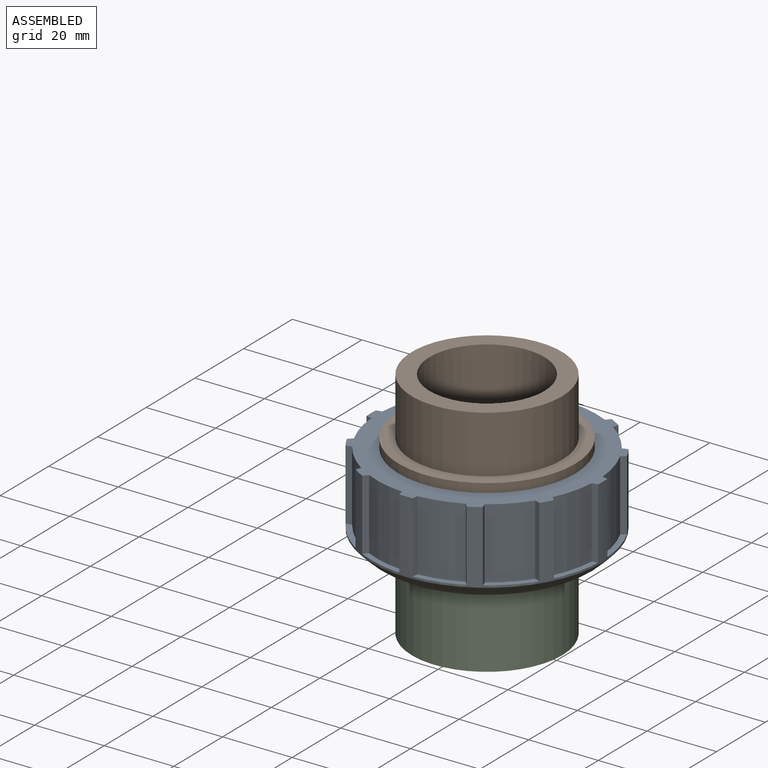
[diagram: assembled view]
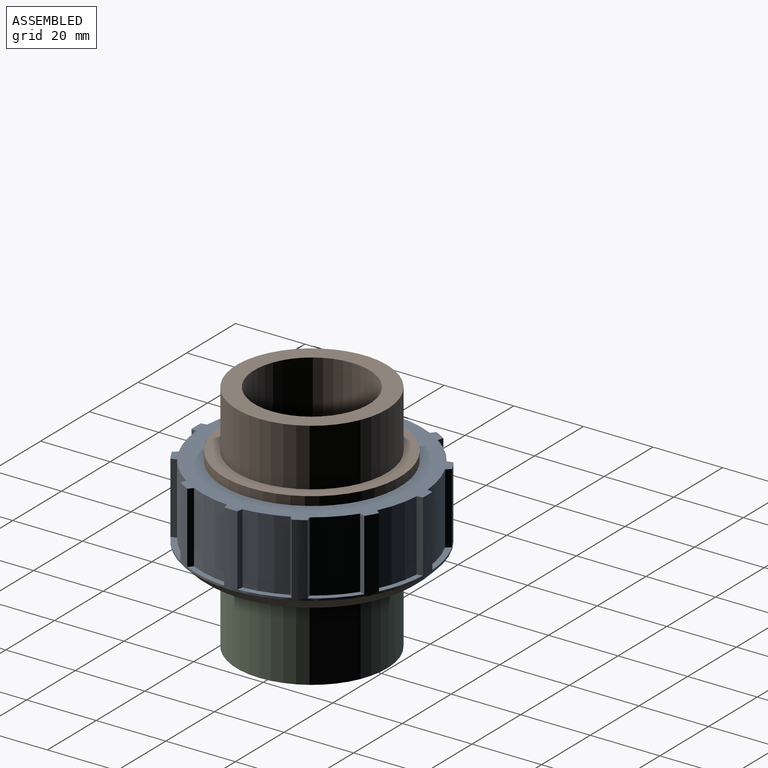
[diagram: assembled view, second angle]
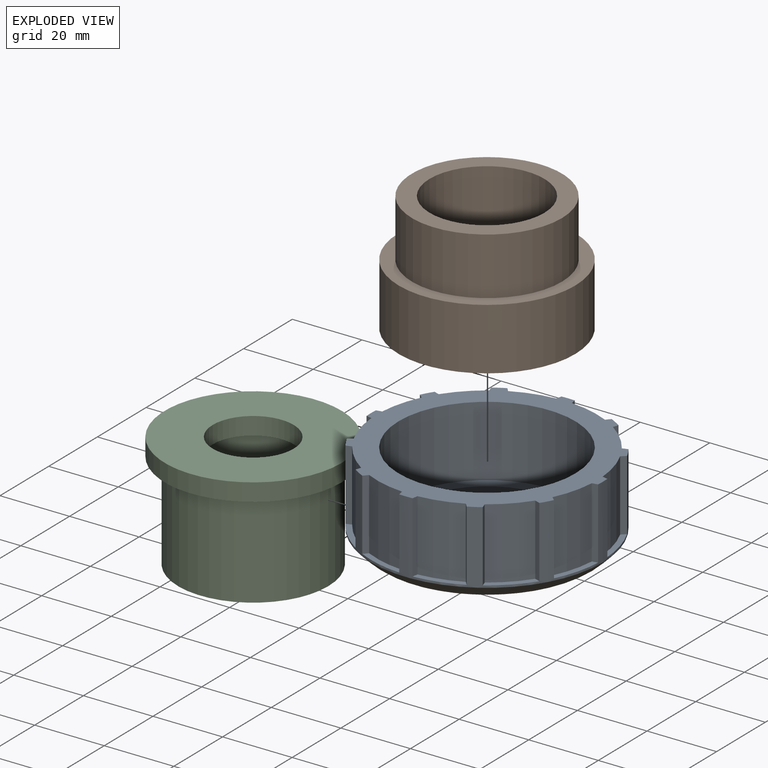
[diagram: exploded view]
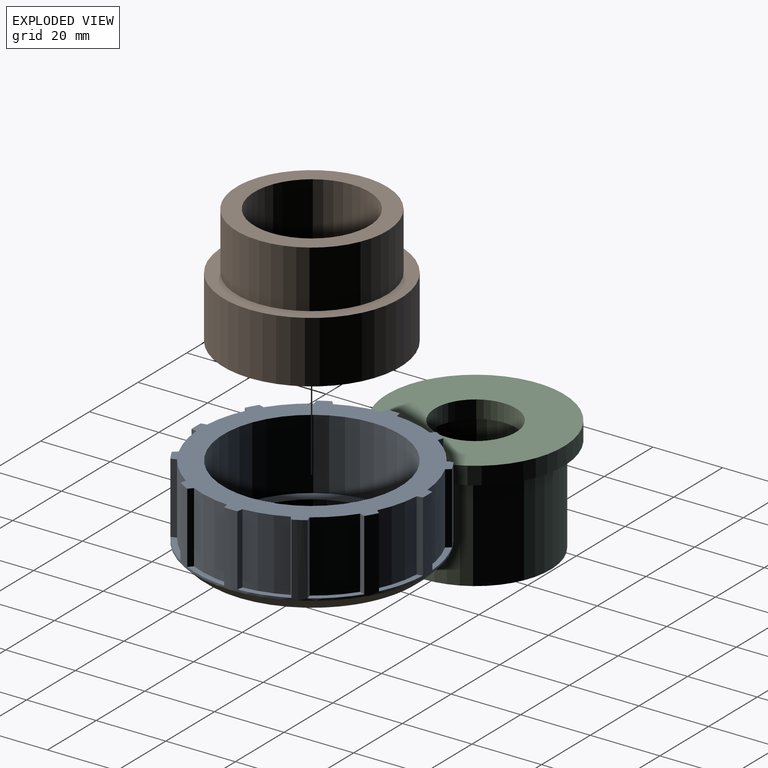
[diagram: exploded view, second angle]
ASSEMBLY  parts=3 mates=2
PART A: 56 faces, bbox 70.6x70.6x25.4 mm
  f0: cylinder r=31.75mm len=20.32mm, axis (0,0,-1), area 247.4mm2, adj f1,f37,f38,f53
  f1: plane 20.32x1.61mm, normal (0.19,-0.98,0), area 33.4mm2, adj f0,f20,f38,f53
  f2: plane 20.32x1.61mm, normal (0.19,0.98,0), area 33.4mm2, adj f3,f20,f38,f42
  f3: cylinder r=31.75mm len=20.32mm, axis (0,0,-1), area 247.4mm2, adj f2,f4,f38,f42
  f4: plane 20.32x1.24mm, normal (0.66,-0.75,0), area 33.4mm2, adj f3,f20,f38,f42
  f5: plane 20.32x1.55mm, normal (-0.32,0.95,0), area 33.4mm2, adj f6,f20,f38,f43
  f6: cylinder r=31.75mm len=20.32mm, axis (0,0,-1), area 247.4mm2, adj f5,f7,f38,f43
  f7: plane 20.32x1.55mm, normal (0.95,-0.32,0), area 33.4mm2, adj f6,f20,f38,f43
  f8: plane 20.32x1.24mm, normal (-0.75,0.66,0), area 33.4mm2, adj f9,f20,f38,f44
  f9: cylinder r=31.75mm len=20.32mm, axis (0,0,-1), area 247.4mm2, adj f8,f10,f38,f44
  f10: plane 20.32x1.61mm, normal (0.98,0.19,0), area 33.4mm2, adj f9,f20,f38,f44
  f11: plane 20.32x1.61mm, normal (-0.98,0.19,0), area 33.4mm2, adj f12,f20,f38,f45
  f12: cylinder r=31.75mm len=20.32mm, axis (0,0,-1), area 247.4mm2, adj f11,f13,f38,f45
  f13: plane 20.32x1.24mm, normal (0.75,0.66,0), area 33.4mm2, adj f12,f20,f38,f45
  f14: plane 20.32x1.55mm, normal (-0.95,-0.32,0), area 33.4mm2, adj f15,f20,f38,f46
  f15: cylinder r=31.75mm len=20.32mm, axis (0,0,-1), area 247.4mm2, adj f14,f16,f38,f46
  f16: plane 20.32x1.55mm, normal (0.32,0.95,0), area 33.4mm2, adj f15,f20,f38,f46
  f17: plane 20.32x1.24mm, normal (-0.66,-0.75,0), area 33.4mm2, adj f18,f20,f38,f47
  f18: cylinder r=31.75mm len=20.32mm, axis (0,0,-1), area 247.4mm2, adj f17,f19,f38,f47
  f19: plane 20.32x1.61mm, normal (-0.19,0.98,0), area 33.4mm2, adj f18,f20,f38,f47
  f20: cylinder r=33.34mm len=66.68mm, axis (0,0,-1), area 1062.5mm2, adj f1,f2,f4,f5,f7,f8,f10,f11
  f21: plane 20.32x1.61mm, normal (-0.19,-0.98,0), area 33.4mm2, adj f20,f22,f38,f48
  f22: cylinder r=31.75mm len=20.32mm, axis (0,0,-1), area 247.4mm2, adj f21,f23,f38,f48
  f23: plane 20.32x1.24mm, normal (-0.66,0.75,0), area 33.4mm2, adj f20,f22,f38,f48
  f24: plane 20.32x1.55mm, normal (0.32,-0.95,0), area 33.4mm2, adj f20,f25,f38,f49
  f25: cylinder r=31.75mm len=20.32mm, axis (0,0,-1), area 247.4mm2, adj f24,f26,f38,f49
  f26: plane 20.32x1.55mm, normal (-0.95,0.32,0), area 33.4mm2, adj f20,f25,f38,f49
  f27: plane 20.32x1.24mm, normal (0.75,-0.66,0), area 33.4mm2, adj f20,f28,f38,f50
  f28: cylinder r=31.75mm len=20.32mm, axis (0,0,-1), area 247.4mm2, adj f27,f29,f38,f50
  f29: plane 20.32x1.61mm, normal (-0.98,-0.19,0), area 33.4mm2, adj f20,f28,f38,f50
  f30: plane 20.32x1.61mm, normal (0.98,-0.19,0), area 33.4mm2, adj f20,f31,f38,f51
  f31: cylinder r=31.75mm len=20.32mm, axis (0,0,-1), area 247.4mm2, adj f30,f32,f38,f51
  f32: plane 20.32x1.24mm, normal (-0.75,-0.66,0), area 33.4mm2, adj f20,f31,f38,f51
  f33: plane 20.32x1.55mm, normal (0.95,0.32,0), area 33.4mm2, adj f20,f34,f38,f52
  f34: cylinder r=31.75mm len=20.32mm, axis (0,0,-1), area 247.4mm2, adj f33,f35,f38,f52
  f35: plane 20.32x1.55mm, normal (-0.32,-0.95,0), area 33.4mm2, adj f20,f34,f38,f52
  f36: cylinder r=25.4mm len=50.8mm, axis (0,0,-1), area 3242.9mm2, adj f38,f41
  f37: plane 20.32x1.24mm, normal (0.66,0.75,0), area 33.4mm2, adj f0,f20,f38,f53
  f38: plane 66.68x66.68mm, normal (0,0,1), area 1218.8mm2, adj f0,f1,f2,f3,f4,f5,f6,f7
  f39: plane 52.52x52.52mm, normal (0,0,-1), area 659mm2, adj f40,f55
  f40: cylinder r=21.91mm len=43.82mm, axis (0,0,-1), area 699.3mm2, adj f39,f41
  f41: plane 50.8x50.8mm, normal (0,0,1), area 519.1mm2, adj f36,f40
  f42: plane 13.09x4.74mm, normal (0,0,1), area 20.5mm2, adj f2,f3,f4,f20
  f43: plane 10.11x10.11mm, normal (0,0,1), area 20.5mm2, adj f5,f6,f7,f20
  f44: plane 13.09x4.74mm, normal (0,0,1), area 20.5mm2, adj f8,f9,f10,f20
  f45: plane 13.09x4.74mm, normal (0,0,1), area 20.5mm2, adj f11,f12,f13,f20
  f46: plane 10.11x10.11mm, normal (0,0,1), area 20.5mm2, adj f14,f15,f16,f20
  f47: plane 13.09x4.74mm, normal (0,0,1), area 20.5mm2, adj f17,f18,f19,f20
  f48: plane 13.09x4.74mm, normal (0,0,1), area 20.5mm2, adj f20,f21,f22,f23
  f49: plane 10.11x10.11mm, normal (0,0,1), area 20.5mm2, adj f20,f24,f25,f26
  f50: plane 13.09x4.74mm, normal (0,0,1), area 20.5mm2, adj f20,f27,f28,f29
  f51: plane 13.09x4.74mm, normal (0,0,1), area 20.5mm2, adj f20,f30,f31,f32
  f52: plane 10.11x10.11mm, normal (0,0,1), area 20.5mm2, adj f20,f33,f34,f35
  f53: plane 13.09x4.74mm, normal (0,0,1), area 20.5mm2, adj f0,f1,f20,f37
  f54: cone r=33.34mm half-angle=45deg, axis (0,0,1), area 736.1mm2, adj f20,f55
  f55: torus R=26.26mm, axis (0,0,1), area 897.2mm2, adj f39,f54
PART B: 28 faces, bbox 50.8x50.8x34.3 mm
  f0: plane 50.8x50.8mm, normal (0,0,-1), area 1195.7mm2, adj f4,f6,f8,f9,f10,f11,f13,f14
  f1: cylinder r=21.59mm len=43.18mm, axis (0,0,-1), area 2239.6mm2, adj f3,f7
  f2: cylinder r=16.51mm len=33.02mm, axis (0,0,-1), area 2898.4mm2, adj f3,f5
  f3: plane 43.18x43.18mm, normal (0,0,1), area 608mm2, adj f1,f2
  f4: cylinder r=11.43mm len=22.86mm, axis (0,0,-1), area 456mm2, adj f0,f5
  f5: plane 33.02x33.02mm, normal (0,0,1), area 445.9mm2, adj f2,f4
  f6: cylinder r=25.4mm len=50.8mm, axis (0,0,-1), area 2837.6mm2, adj f0,f7
  f7: plane 50.8x50.8mm, normal (0,0,1), area 562.4mm2, adj f1,f6
  f8: plane 12.7x3.5mm, normal (1,0,0), area 44.5mm2, adj f0,f9,f11,f12
  f9: cylinder r=22.86mm len=21.29mm, axis (0,0,-1), area 417.3mm2, adj f0,f8,f10,f12
  f10: plane 12.7x3.5mm, normal (0,-1,0), area 44.5mm2, adj f0,f9,f11,f12
  f11: cylinder r=19.37mm len=17.78mm, axis (0,0,-1), area 347.6mm2, adj f0,f8,f10,f12
  f12: plane 21.29x21.29mm, normal (0,0,-1), area 105.2mm2, adj f8,f9,f10,f11
  f13: plane 12.7x3.5mm, normal (-1,0,0), area 44.5mm2, adj f0,f14,f16,f17
  f14: cylinder r=22.86mm len=21.29mm, axis (0,0,-1), area 417.3mm2, adj f0,f13,f15,f17
  f15: plane 12.7x3.5mm, normal (0,1,0), area 44.5mm2, adj f0,f14,f16,f17
  f16: cylinder r=19.37mm len=17.78mm, axis (0,0,-1), area 347.6mm2, adj f0,f13,f15,f17
  f17: plane 21.29x21.29mm, normal (0,0,-1), area 105.2mm2, adj f13,f14,f15,f16
  f18: cylinder r=22.86mm len=21.29mm, axis (0,0,-1), area 417.3mm2, adj f0,f19,f21,f22
  f19: plane 12.7x3.5mm, normal (1,0,0), area 44.5mm2, adj f0,f18,f20,f22
  f20: cylinder r=19.37mm len=17.78mm, axis (0,0,-1), area 347.6mm2, adj f0,f19,f21,f22
  f21: plane 12.7x3.5mm, normal (0,1,0), area 44.5mm2, adj f0,f18,f20,f22
  f22: plane 21.29x21.29mm, normal (0,0,-1), area 105.2mm2, adj f18,f19,f20,f21
  f23: plane 12.7x3.5mm, normal (0,-1,0), area 44.5mm2, adj f0,f24,f26,f27
  f24: cylinder r=22.86mm len=21.29mm, axis (0,0,-1), area 417.3mm2, adj f0,f23,f25,f27
  f25: plane 12.7x3.5mm, normal (-1,0,0), area 44.5mm2, adj f0,f24,f26,f27
  f26: cylinder r=19.37mm len=17.78mm, axis (0,0,-1), area 347.6mm2, adj f0,f23,f25,f27
  f27: plane 21.29x21.29mm, normal (0,0,-1), area 105.2mm2, adj f23,f24,f25,f26
PART C: 8 faces, bbox 50.8x50.8x33 mm
  f0: cylinder r=16.51mm len=33.02mm, axis (0,0,-1), area 2898.4mm2, adj f2,f5
  f1: cylinder r=21.59mm len=43.18mm, axis (0,0,-1), area 3790.2mm2, adj f2,f7
  f2: plane 43.18x43.18mm, normal (0,0,1), area 608mm2, adj f0,f1
  f3: plane 50.8x50.8mm, normal (0,0,-1), area 1602.6mm2, adj f4,f6
  f4: cylinder r=11.62mm len=23.24mm, axis (0,0,-1), area 370.9mm2, adj f3,f5
  f5: plane 33.02x33.02mm, normal (0,0,1), area 432.1mm2, adj f0,f4
  f6: cylinder r=25.4mm len=50.8mm, axis (0,0,-1), area 810.7mm2, adj f3,f7
  f7: plane 50.8x50.8mm, normal (0,0,1), area 562.4mm2, adj f1,f6
PLACE A at identity fixed
PLACE B t=(101.6,0,10.16)mm
PLACE C rot(axis=(1,0,0),180deg) t=(-101.6,0,10.16)mm
MATE fastened C.f1 <-> A.f36  axis (0,0,-1) through (0,0,5.08)mm
MATE fastened B.f4 <-> C.f4  axis (0,0,-1) through (0,0,10.16)mm
